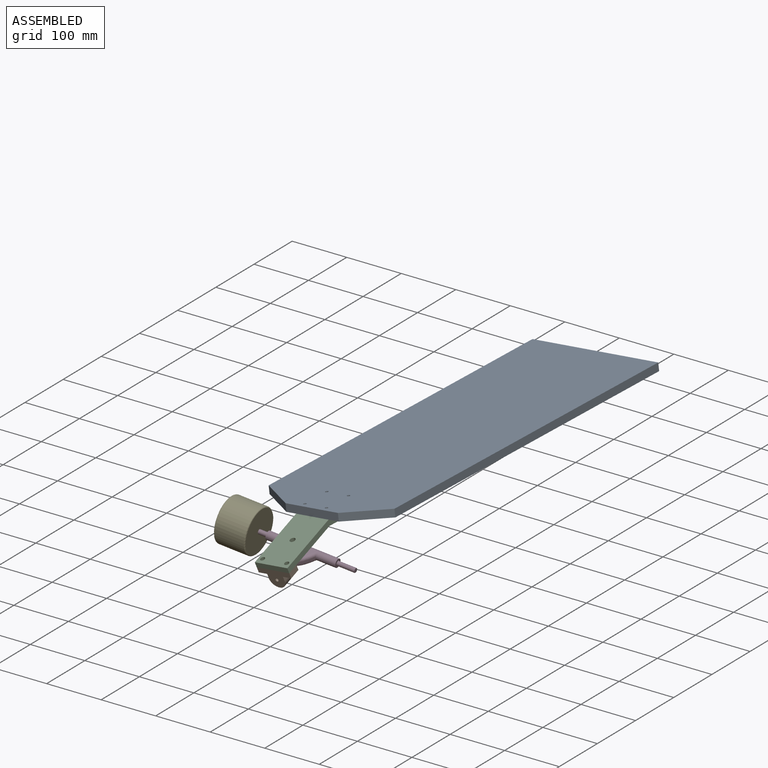
[diagram: assembled view]
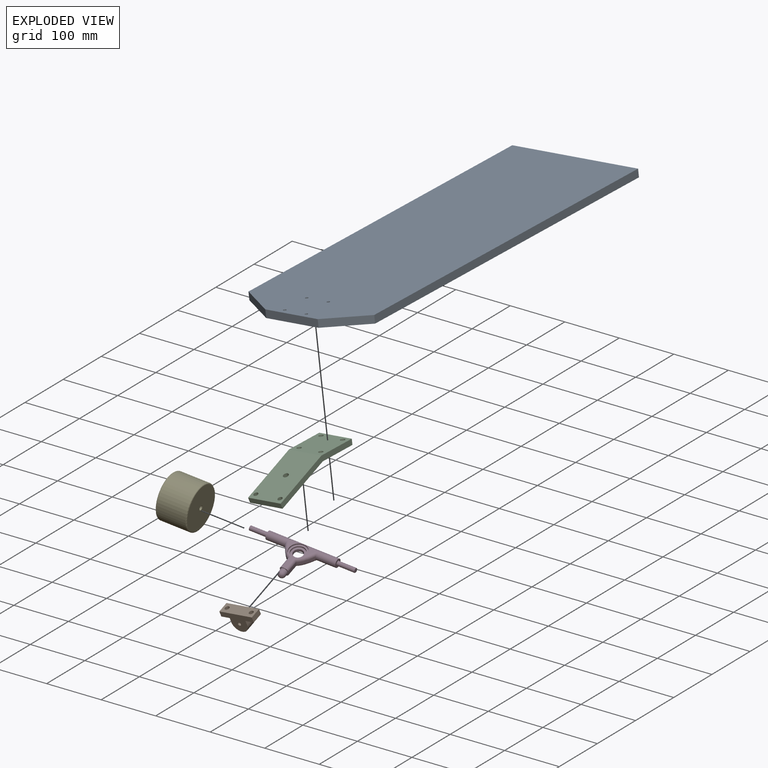
[diagram: exploded view]
GUIDED TOUR — MATED ASSEMBLY (Onshape document 6af5af3749e7a4083518a09f, AutoMate assembly 6af5af3749e7a4083518a09f_86c5d59324a404f8fcf265b6_cbd1438ab8a9dd04307d9369_default)

This assembly has 5 components, labeled P0..P4 below (a component is one placed occurrence of a part; the same part can appear more than once), held together by 4 mates. A mate is a constraint between two components; its type names the relative motion it leaves free:
  FASTENED — locks the two components together rigidly (no relative motion),
  REVOLUTE — leaves rotation about the listed axis free (a hinge).
Axis/direction vectors are unit vectors and 'through' points are millimeter coordinates, both in the assembly's world frame.

MATES
  1. FASTENED "Fastened 3": P2 <-> P0, direction (-0.120, 0.003, 0.993) through (166.66, -402.34, 67.74) mm
  2. FASTENED "Fastened 1": P1 <-> P2, direction (-0.128, -0.339, 0.932) through (169.77, -508.42, 23.14) mm
  3. FASTENED "Fastened 2": P4 <-> P3, direction (0.991, 0.046, -0.125) through (71.61, -445.45, 33.80) mm
  4. REVOLUTE "Revolute 1": P3 <-> P1, axis (0.000, 0.940, 0.342) through (149.41, -497.15, 3.86) mm

ASSEMBLY ORDER
  1. P3 — the base component [order verified]
  2. P1 [order verified]
  3. P2 [order verified]
  4. P4 [order verified]
  5. P0 [order verified]
(P1 verified with a relaxed clearance tolerance: the source model stores slight part interference there.)
Order-tag legend:
  [order verified] — this step's position reverses a verified removal order: the component was checked to insert without passing through the ones already placed.

Of the 5 components, 3 carry the full construction recipe — the FeatureScript program that regenerates the part's solid from scratch; the rest are supplied as boundary geometry only.
Each toured component is shown spotlighted twice — in the assembled view, then in the exploded view, where a leader line traces a displaced component back to its assembled socket (saturated green if recipe-attached, orange if geometry-only; every other component desaturated gray) — followed by its recipe or geometry summary and the mates that hold it.
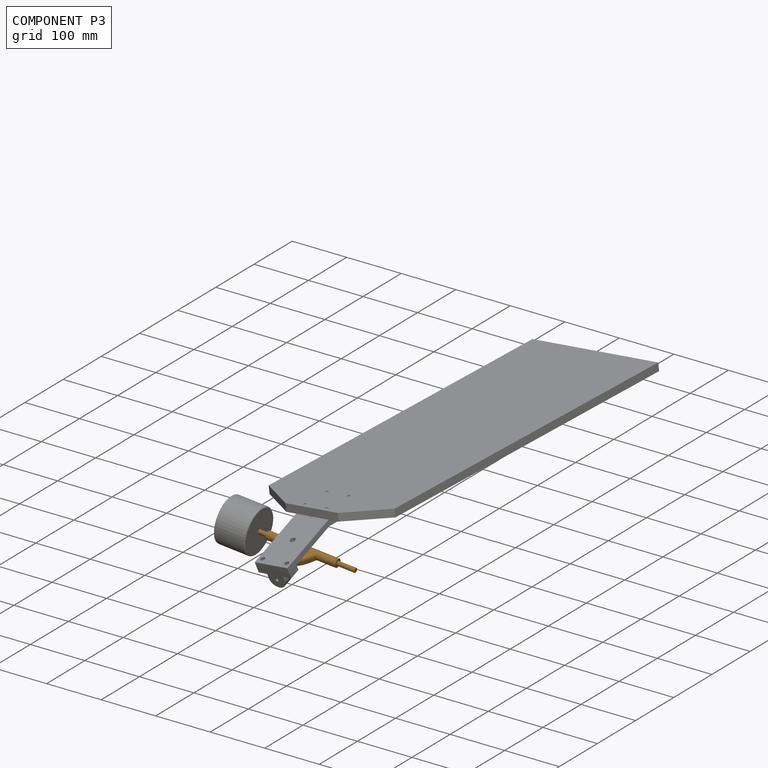
[diagram: component P3 — assembled]
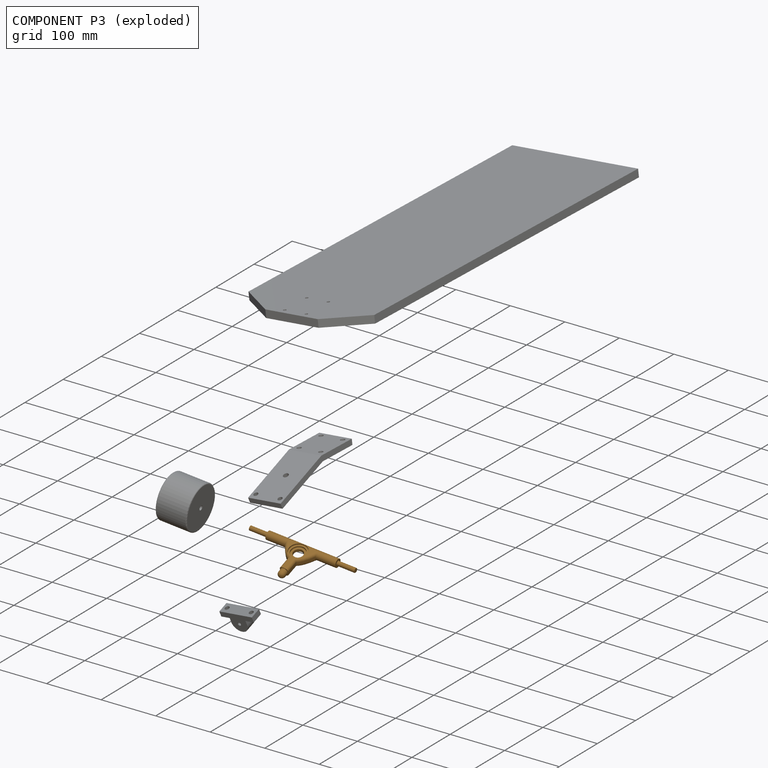
[diagram: component P3 — exploded]
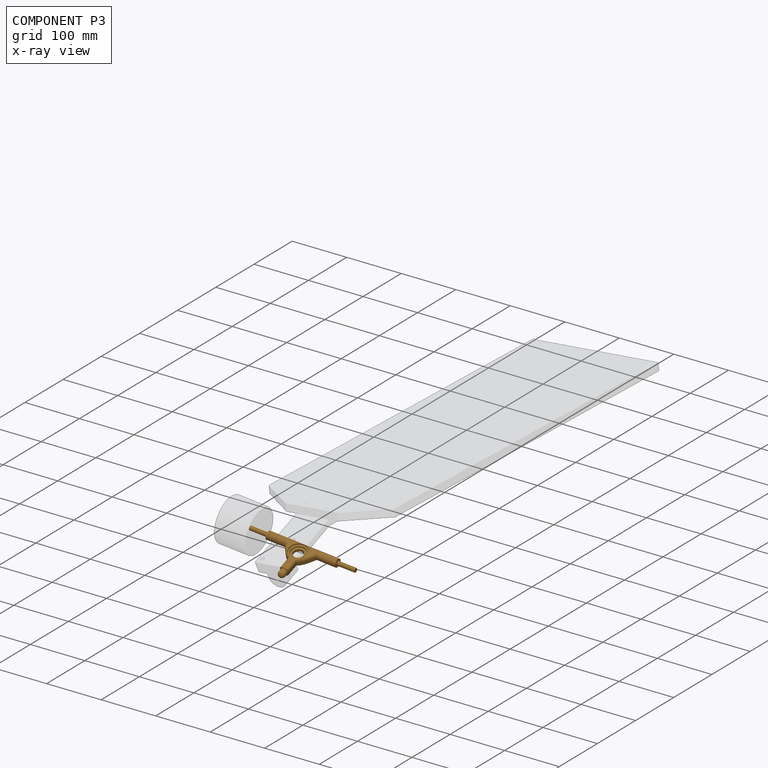
[diagram: component P3 — x-ray view]
COMPONENT P3 — geometry summary (no construction recipe available for this part):
  bounding box: 189.0 x 72.7 x 15.0 mm
  B-rep topology: 1 solid, 37 faces, 173 edges
  volume: 36947 mm^3 (18% of its bounding box)
  symmetry: 2-fold rotationally symmetric about the y axis; mirror-symmetric across its x mid-plane, z mid-plane
Held by: FASTENED mate "Fastened 2" to P4; REVOLUTE mate "Revolute 1" to P1.
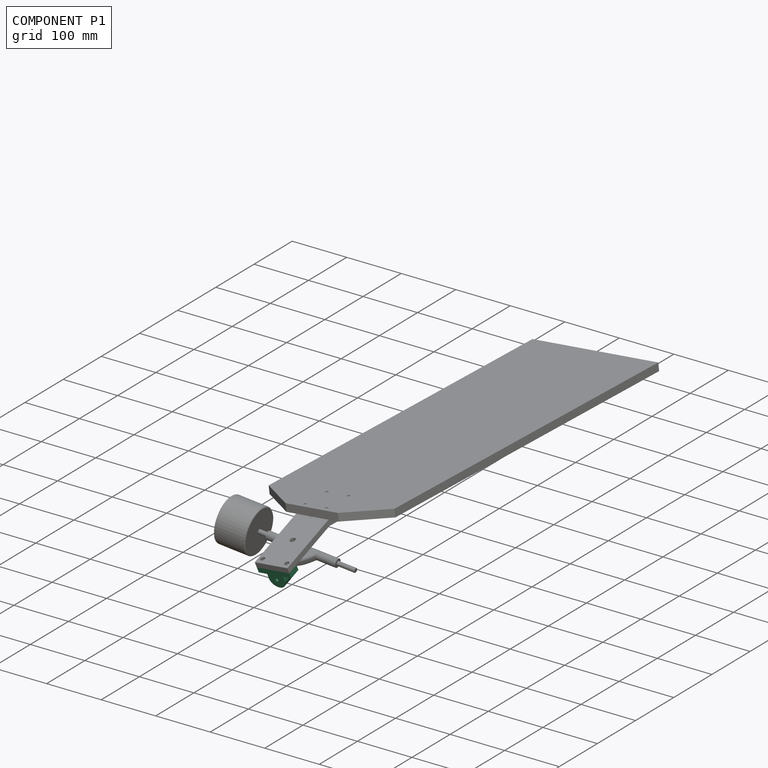
[diagram: component P1 — assembled]
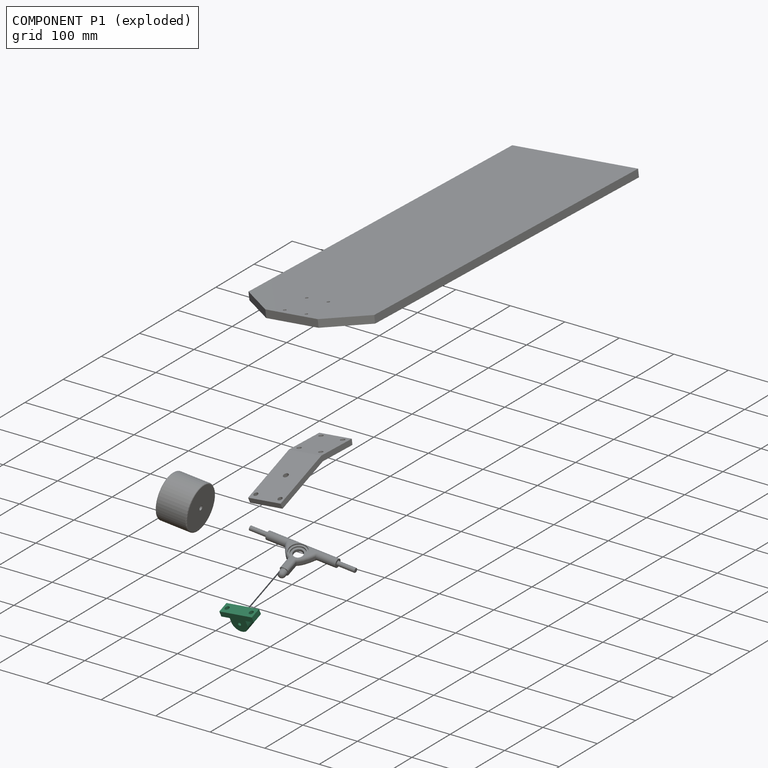
[diagram: component P1 — exploded]
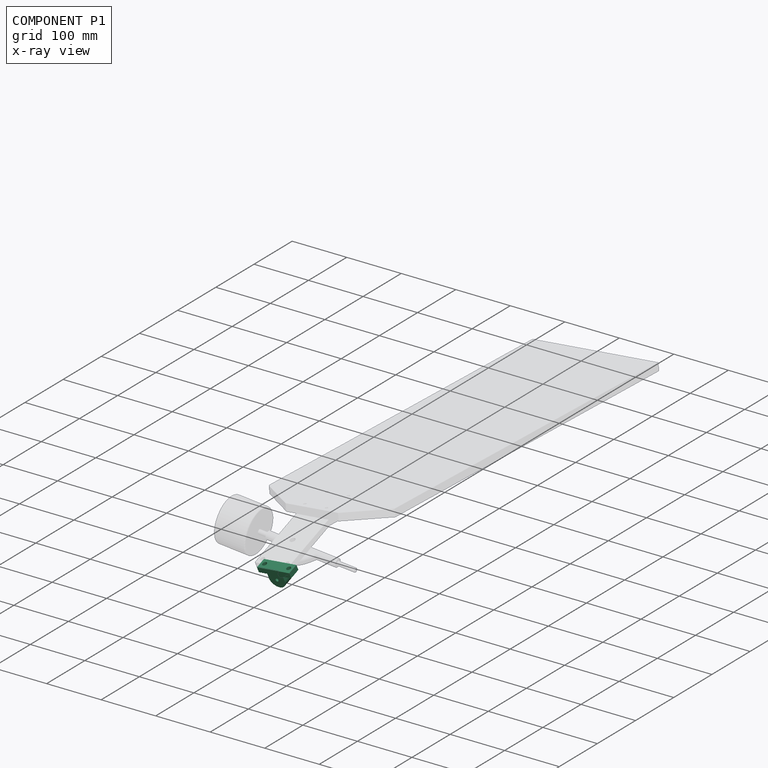
[diagram: component P1 — x-ray view]
COMPONENT P1 — recipe-attached (CADFS 00475360, mesh-verified: the recipe's output STEP matches this component's geometry to below the mesh-comparison resolution (tessellation chordal tolerance ~0.11 mm)).
Held by: FASTENED mate "Fastened 1" to P2; REVOLUTE mate "Revolute 1" to P3.
Construction recipe (FeatureScript — the CAD program that rebuilds this solid; sketch coordinates are in the units given by the * unit suffixes, e.g. mm):

FeatureScript 1511;
import(path : "onshape/std/geometry.fs", version : "1511.0");
import(path : "onshape/std/common.fs", version : "1511.0");
const mm = millimeter;
const VERTEX = EntityType.VERTEX;
const EDGE = EntityType.EDGE;
const FACE = EntityType.FACE;
const BODY = EntityType.BODY;
function v(x, y){return vector(x, y);}
function OD(order){return orderDisambiguation(order);}
function OSD(set){return originalSetDisambiguation(set);}
function TD(topology){return topologyDisambiguation(topology);}
function TDD(query){return trueDependencyDisambiguation(query);}
function sQuery(a, b, c) {return sketchEntityQuery(a, b, c);}

annotation { "Feature Type Name" : "Feature", "Feature Type Description" : "" }
export const myFeature = defineFeature(function(context is Context, id is Id, definition is map)
    precondition{}
    {
        {
            var Q0;
            Q0=qCreatedBy(makeId("Top.planeOp"),FACE);
            var sketch = newSketch(context, id + "F0", { "sketchPlane" : qUnion([Q0])});
            skLineSegment(sketch, "E0.bottom", {"start": v(28, -19.2) * mm, "end": v(-28, -19.2) * mm});
            skLineSegment(sketch, "E0.top", {"start": v(28, 0) * mm, "end": v(-28, 0) * mm});
            skLineSegment(sketch, "E0.left", {"start": v(28, -19.2) * mm, "end": v(28, 0) * mm});
            skLineSegment(sketch, "E0.right", {"start": v(-28, -19.2) * mm, "end": v(-28, 0) * mm});
            skPoint(sketch, "E0.middle", {"position": v(0, -9.6) * mm});
            skCircle(sketch, "E1", {"center": v(0, 0) * mm, "radius": 9.5 * mm});
            skArc(sketch, "E2", {"start": v(-15, 0) * mm, "mid": v(0, 15) * mm, "end": v(15, 0) * mm});
            skLineSegment(sketch, "E3", {"start": v(-28, -9.2) * mm, "end": v(-11, -9.2) * mm});
            skLineSegment(sketch, "E4", {"start": v(-11, -9.2) * mm, "end": v(-11, -19.2) * mm});
            skLineSegment(sketch, "E5", {"start": v(11, -19.2) * mm, "end": v(11, -9.2) * mm});
            skLineSegment(sketch, "E6", {"start": v(11, -9.2) * mm, "end": v(28, -9.2) * mm});
            skLineSegment(sketch, "E7", {"start": v(-28, 0) * mm, "end": v(-28, 8.5) * mm});
            skLineSegment(sketch, "E8", {"start": v(-28, 8.5) * mm, "end": v(28, 8.5) * mm});
            skLineSegment(sketch, "E9", {"start": v(28, 8.5) * mm, "end": v(28, 0) * mm});
            skPoint(sketch, "E10", {"position": v(-19, 0) * mm});
            skLineSegment(sketch, "E11", {"start": v(-28, 3.17) * mm, "end": v(-28, 0) * mm});
            skPoint(sketch, "E12", {"position": v(28, 0) * mm});
            skPoint(sketch, "E13", {"position": v(19, 0) * mm});
            skPoint(sketch, "E14", {"position": v(25.5, 0) * mm});
            skPoint(sketch, "E15", {"position": v(12.4, 0) * mm});
            skPoint(sketch, "E16", {"position": v(0, 21) * mm});
            skLineSegment(sketch, "E17", {"start": v(0, 21) * mm, "end": v(-28, 13.5) * mm});
            skPoint(sketch, "E18", {"position": v(-25.5, 0) * mm});
            skLineSegment(sketch, "E19", {"start": v(-25.5, 0) * mm, "end": v(-25.5, 14.17) * mm});
            skPoint(sketch, "E20", {"position": v(-25.5, 8.67) * mm});
            skPoint(sketch, "E21", {"position": v(-12.4, 0) * mm});
            skLineSegment(sketch, "E22", {"start": v(-25.5, 8.67) * mm, "end": v(-12.24, 8.67) * mm});
            skPoint(sketch, "E23", {"position": v(-19, 8.67) * mm});
            skLineSegment(sketch, "E24", {"start": v(31, 8.5) * mm, "end": v(31, -9.2) * mm});
            skLineSegment(sketch, "E25", {"start": v(28, 8.5) * mm, "end": v(31, 8.5) * mm});
            skLineSegment(sketch, "E26", {"start": v(-28, 8.5) * mm, "end": v(-31, 8.5) * mm});
            skLineSegment(sketch, "E27", {"start": v(-31, 8.5) * mm, "end": v(-31, -9.2) * mm});
            skLineSegment(sketch, "E28", {"start": v(-31, -9.2) * mm, "end": v(-28, -9.2) * mm});
            skLineSegment(sketch, "E29", {"start": v(31, -9.2) * mm, "end": v(28, -9.2) * mm});
            skLineSegment(sketch, "E30", {"start": v(31, -9.2) * mm, "end": v(31, -19.2) * mm});
            skLineSegment(sketch, "E31", {"start": v(31, -19.2) * mm, "end": v(28, -19.2) * mm});
            skLineSegment(sketch, "E32", {"start": v(-31, -9.2) * mm, "end": v(-31, -19.2) * mm});
            skLineSegment(sketch, "E33", {"start": v(-31, -19.2) * mm, "end": v(-28, -19.2) * mm});
            skLineSegment(sketch, "E34", {"start": v(15, 0) * mm, "end": v(15, -9.2) * mm});
            skLineSegment(sketch, "E35", {"start": v(-15, 0) * mm, "end": v(-15, -9.2) * mm});
            skSolve(sketch);
        }
        {
            var Q0;
            {var subQ1=sQuery(id+"F0.wireOp",EDGE,"E0.top");var subQ3=sQuery(id+"F0.wireOp",EDGE,"E1");var subQ4=makeQuery(id+"F0.imprint","INTERSECT",VERTEX,{"disambiguationData":[OD(1.0)],"derivedFrom":[subQ1,subQ3]});Q0=makeQuery(id+"F0.imprint","IMPRINT",FACE,{"disambiguationData":[TD([[makeQuery(id+"F0.imprint","IMPRINT",EDGE,{"disambiguationData":[TD([[subQ4,1.0]])],"derivedFrom":subQ3}),-1.0]])]});}
            var Q1;
            {var subQ0=sQuery(id+"F0.wireOp",EDGE,"E8");var subQ1=sQuery(id+"F0.wireOp",EDGE,"E1");var subQ7=makeQuery(id+"F0.imprint","INTERSECT",VERTEX,{"disambiguationData":[OD(0.0)],"derivedFrom":[subQ1,subQ0]});Q1=makeQuery(id+"F0.imprint","IMPRINT",FACE,{"disambiguationData":[TD([[makeQuery(id+"F0.imprint","IMPRINT",EDGE,{"disambiguationData":[TD([[subQ7,-1.0]])],"derivedFrom":subQ1}),-1.0]])]});}
            var Q2;
            {var subQ0=sQuery(id+"F0.wireOp",EDGE,"E1");var subQ1=sQuery(id+"F0.wireOp",EDGE,"E0.top");var subQ2=makeQuery(id+"F0.imprint","INTERSECT",VERTEX,{"disambiguationData":[OD(0.0)],"derivedFrom":[subQ1,subQ0]});Q2=makeQuery(id+"F0.imprint","IMPRINT",FACE,{"disambiguationData":[TD([[makeQuery(id+"F0.imprint","IMPRINT",EDGE,{"disambiguationData":[TD([[subQ2,-1.0]])],"derivedFrom":subQ1}),-1.0]])]});}
            var Q3;
            {var subQ0=sQuery(id+"F0.wireOp",EDGE,"E8");var subQ1=sQuery(id+"F0.wireOp",EDGE,"E1");var subQ2=makeQuery(id+"F0.imprint","INTERSECT",VERTEX,{"disambiguationData":[OD(0.0)],"derivedFrom":[subQ1,subQ0]});Q3=makeQuery(id+"F0.imprint","IMPRINT",FACE,{"disambiguationData":[TD([[makeQuery(id+"F0.imprint","IMPRINT",EDGE,{"disambiguationData":[TD([[subQ2,-1.0]])],"derivedFrom":subQ1}),1.0]])]});}
            var Q4;
            {var subQ1=sQuery(id+"F0.wireOp",EDGE,"E0.top");var subQ3=sQuery(id+"F0.wireOp",EDGE,"E1");var subQ4=makeQuery(id+"F0.imprint","INTERSECT",VERTEX,{"disambiguationData":[OD(0.0)],"derivedFrom":[subQ1,subQ3]});Q4=makeQuery(id+"F0.imprint","IMPRINT",FACE,{"disambiguationData":[TD([[makeQuery(id+"F0.imprint","IMPRINT",EDGE,{"disambiguationData":[TD([[subQ4,-1.0]])],"derivedFrom":subQ3}),-1.0]])]});}
            var Q5;
            {var subQ0=sQuery(id+"F0.wireOp",EDGE,"E1");var subQ1=sQuery(id+"F0.wireOp",EDGE,"E0.top");var subQ2=makeQuery(id+"F0.imprint","INTERSECT",VERTEX,{"disambiguationData":[OD(0.0)],"derivedFrom":[subQ1,subQ0]});Q5=makeQuery(id+"F0.imprint","IMPRINT",FACE,{"disambiguationData":[TD([[makeQuery(id+"F0.imprint","IMPRINT",EDGE,{"disambiguationData":[TD([[subQ2,-1.0]])],"derivedFrom":subQ1}),1.0]])]});}
            var Q6;
            {var subQ7=sQuery(id+"F0.wireOp",EDGE,"E4");Q6=makeQuery(id+"F0.imprint","IMPRINT",FACE,{"disambiguationData":[TD([[makeQuery(id+"F0.imprint","IMPRINT",EDGE,{"derivedFrom":subQ7}),1.0]])]});}
            var Q7;
            {var subQ6=sQuery(id+"F0.wireOp",EDGE,"E4");Q7=makeQuery(id+"F0.imprint","IMPRINT",FACE,{"disambiguationData":[TD([[makeQuery(id+"F0.imprint","IMPRINT",EDGE,{"derivedFrom":subQ6}),-1.0]])]});}
            var Q8;
            {var subQ2=sQuery(id+"F0.wireOp",EDGE,"E28");Q8=makeQuery(id+"F0.imprint","IMPRINT",FACE,{"disambiguationData":[TD([[makeQuery(id+"F0.imprint","IMPRINT",EDGE,{"derivedFrom":subQ2}),-1.0]])]});}
            var Q9;
            {var subQ0=sQuery(id+"F0.wireOp",EDGE,"E5");Q9=makeQuery(id+"F0.imprint","IMPRINT",FACE,{"disambiguationData":[TD([[makeQuery(id+"F0.imprint","IMPRINT",EDGE,{"derivedFrom":subQ0}),-1.0]])]});}
            var Q10;
            {var subQ2=sQuery(id+"F0.wireOp",EDGE,"E29");Q10=makeQuery(id+"F0.imprint","IMPRINT",FACE,{"disambiguationData":[TD([[makeQuery(id+"F0.imprint","IMPRINT",EDGE,{"derivedFrom":subQ2}),1.0]])]});}
            extrude(context, id + "F1", {"entities" : qUnion([Q0, Q1, Q2, Q3, Q4, Q5, Q6, Q7, Q8, Q9, Q10]), "oppositeDirection" : true, "depth" : 20 * mm});
        }
        {
            var Q0;
            Q0=sQuery(id+"F0.wireOp",VERTEX,"E2.center");
            var Q1;
            Q1=makeQuery(id+"F1.opExtrude","SWEPT_BODY",BODY,{"disambiguationData":[OSD([sQuery(id+"F0.wireOp",EDGE,"E0.bottom"),sQuery(id+"F0.wireOp",EDGE,"E0.left"),sQuery(id+"F0.wireOp",EDGE,"E0.right"),sQuery(id+"F0.wireOp",EDGE,"E2"),sQuery(id+"F0.wireOp",EDGE,"E3"),sQuery(id+"F0.wireOp",EDGE,"E4"),sQuery(id+"F0.wireOp",EDGE,"E5"),sQuery(id+"F0.wireOp",EDGE,"E6"),sQuery(id+"F0.wireOp",EDGE,"E7"),sQuery(id+"F0.wireOp",EDGE,"E8"),sQuery(id+"F0.wireOp",EDGE,"E9"),sQuery(id+"F0.wireOp",EDGE,"E11")])]});
            hole(context, id + "F2", {"style" : HoleStyle.SIMPLE, "endStyle" : HoleEndStyle.THROUGH, "standardTappedOrClearance" : lookupTablePath({ "standard" : "ISO", "size" : "6", "type" : "Drilled" }), "standardBlindInLast" : lookupTablePath({ "standard" : "ISO", "size" : "6", "type" : "Drilled" }), "holeDiameter" : 6 * mm, "isTappedThrough" : true, "tappedDepth" : 12 * mm, "tapClearance" : 3, "locations" : qUnion([Q0]), "scope" : qUnion([Q1])});
        }
        {
            var Q0;
            Q0=makeQuery(id+"F1.opExtrude","SWEPT_FACE",FACE,{"disambiguationData":[OSD([sQuery(id+"F0.wireOp",EDGE,"E6"),sQuery(id+"F0.wireOp",EDGE,"E29")])]});
            var sketch = newSketch(context, id + "F3", { "sketchPlane" : qUnion([Q0])});
            skPoint(sketch, "E36", {"position": v(-23, -10) * mm});
            skPoint(sketch, "E36.positionSnap0", {"position": v(-23, 0) * mm});
            skPoint(sketch, "E36.positionSnap1", {"position": v(-31, -10) * mm});
            skSolve(sketch);
        }
        {
            var Q0;
            Q0=makeQuery(id+"F1.opExtrude","SWEPT_FACE",FACE,{"disambiguationData":[OSD([sQuery(id+"F0.wireOp",EDGE,"E3"),sQuery(id+"F0.wireOp",EDGE,"E28")])]});
            var sketch = newSketch(context, id + "F4", { "sketchPlane" : qUnion([Q0])});
            skPoint(sketch, "E37", {"position": v(23, -10) * mm});
            skPoint(sketch, "E37.positionSnap0", {"position": v(31, -10) * mm});
            skPoint(sketch, "E37.positionSnap1", {"position": v(23, 0) * mm});
            skSolve(sketch);
        }
        {
            var Q0;
            Q0=sQuery(id+"F3.wireOp",VERTEX,"E36");
            var Q1;
            Q1=sQuery(id+"F4.wireOp",VERTEX,"E37");
            var Q2;
            Q2=makeQuery(id+"F1.opExtrude","SWEPT_BODY",BODY,{"disambiguationData":[OSD([sQuery(id+"F0.wireOp",EDGE,"E0.bottom"),sQuery(id+"F0.wireOp",EDGE,"E2"),sQuery(id+"F0.wireOp",EDGE,"E3"),sQuery(id+"F0.wireOp",EDGE,"E6"),sQuery(id+"F0.wireOp",EDGE,"E28"),sQuery(id+"F0.wireOp",EDGE,"E29"),sQuery(id+"F0.wireOp",EDGE,"E30"),sQuery(id+"F0.wireOp",EDGE,"E31"),sQuery(id+"F0.wireOp",EDGE,"E32"),sQuery(id+"F0.wireOp",EDGE,"E33"),sQuery(id+"F0.wireOp",EDGE,"E34"),sQuery(id+"F0.wireOp",EDGE,"E35")])]});
            hole(context, id + "F5", {"style" : HoleStyle.SIMPLE, "endStyle" : HoleEndStyle.THROUGH, "standardTappedOrClearance" : lookupTablePath({ "standard" : "ISO", "size" : "8", "type" : "Drilled" }), "standardBlindInLast" : lookupTablePath({ "standard" : "ISO", "size" : "8", "type" : "Drilled" }), "holeDiameter" : 8 * mm, "isTappedThrough" : true, "tappedDepth" : 12 * mm, "tapClearance" : 3, "locations" : qUnion([Q0, Q1]), "scope" : qUnion([Q2])});
        }
    });
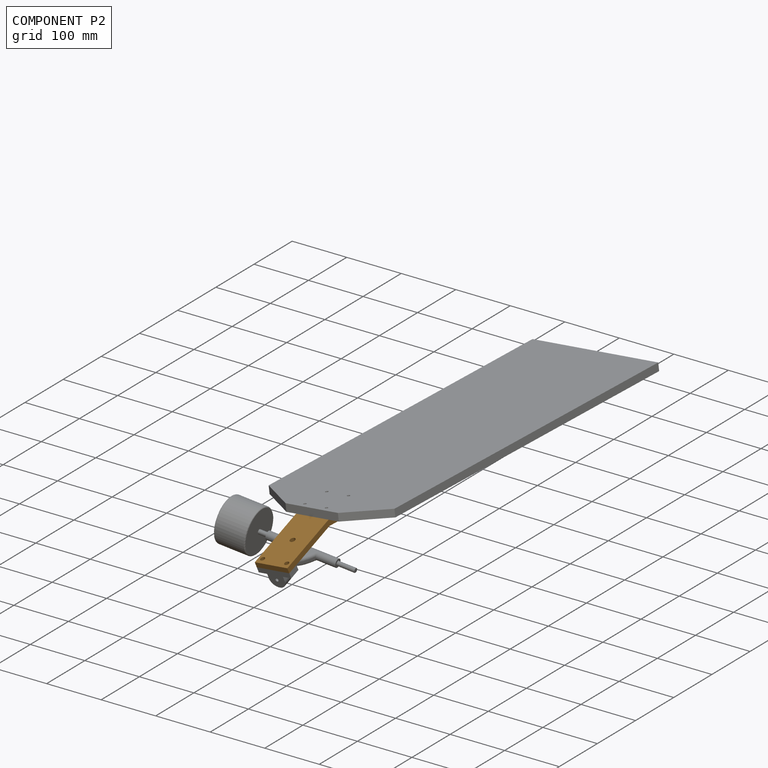
[diagram: component P2 — assembled]
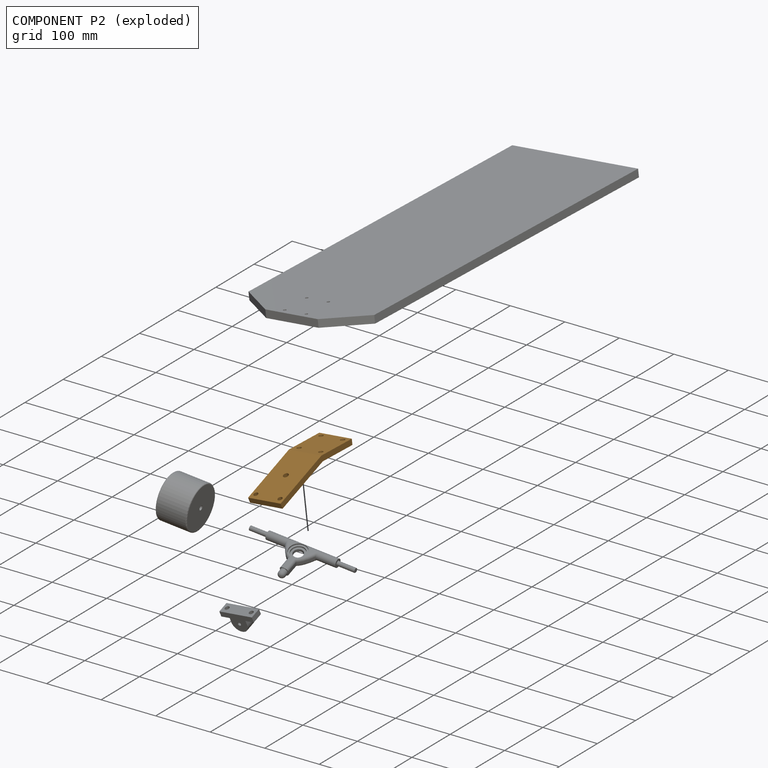
[diagram: component P2 — exploded]
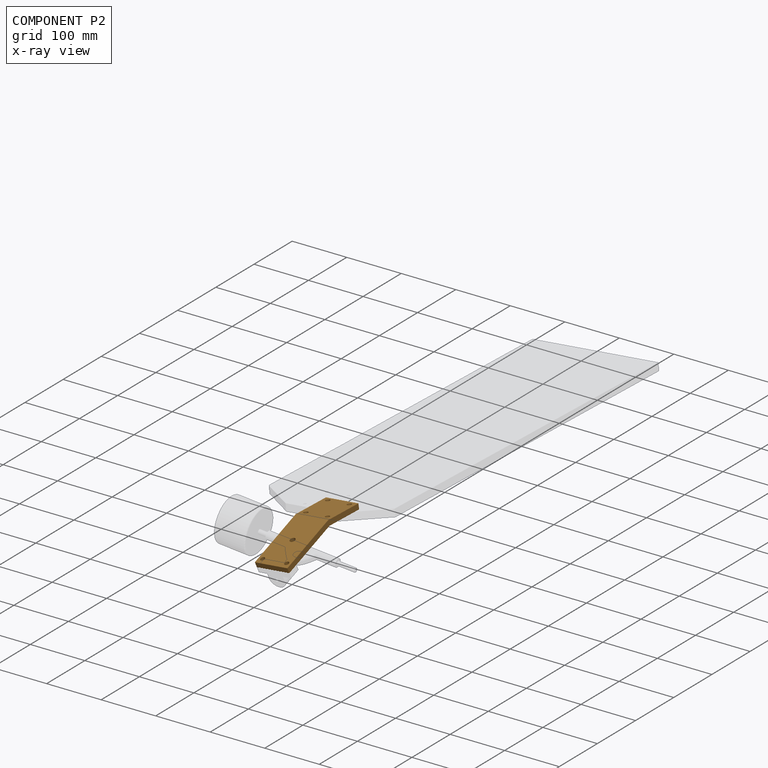
[diagram: component P2 — x-ray view]
COMPONENT P2 — geometry summary (no construction recipe available for this part):
  bounding box: 181.9 x 62.0 x 48.3 mm
  B-rep topology: 1 solid, 15 faces, 92 edges
  volume: 112212 mm^3 (21% of its bounding box)
  symmetry: mirror-symmetric across its z mid-plane
Held by: FASTENED mate "Fastened 3" to P0; FASTENED mate "Fastened 1" to P1.
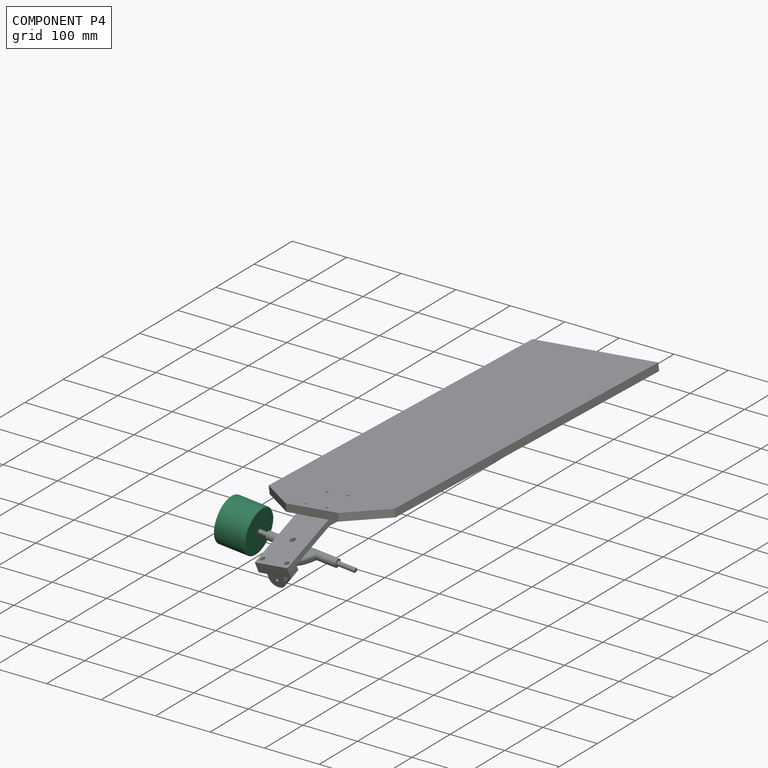
[diagram: component P4 — assembled]
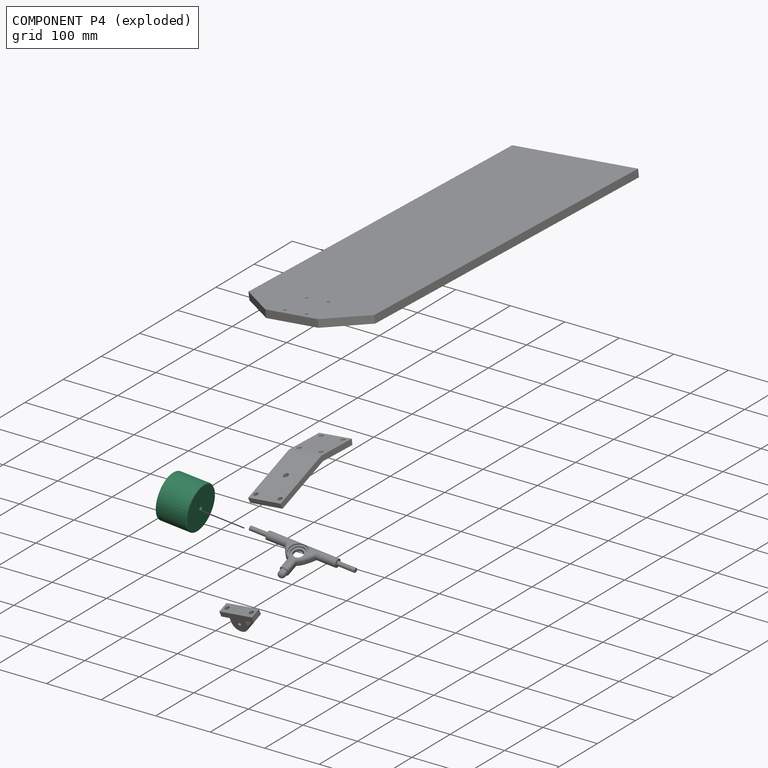
[diagram: component P4 — exploded]
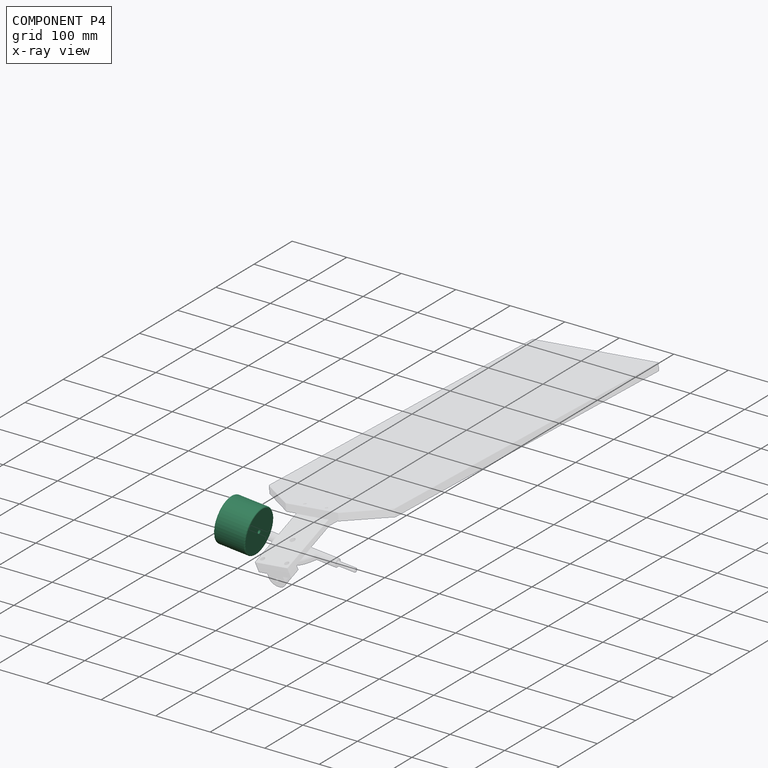
[diagram: component P4 — x-ray view]
COMPONENT P4 — recipe-attached (CADFS 00475361, mesh-verified: the recipe's output STEP matches this component's geometry to below the mesh-comparison resolution (tessellation chordal tolerance ~0.189 mm)).
Held by: FASTENED mate "Fastened 2" to P3.
Construction recipe (FeatureScript — the CAD program that rebuilds this solid; sketch coordinates are in the units given by the * unit suffixes, e.g. mm):

FeatureScript 1511;
import(path : "onshape/std/geometry.fs", version : "1511.0");
import(path : "onshape/std/common.fs", version : "1511.0");
const mm = millimeter;
const VERTEX = EntityType.VERTEX;
const EDGE = EntityType.EDGE;
const FACE = EntityType.FACE;
const BODY = EntityType.BODY;
function v(x, y){return vector(x, y);}
function OD(order){return orderDisambiguation(order);}
function OSD(set){return originalSetDisambiguation(set);}
function TD(topology){return topologyDisambiguation(topology);}
function TDD(query){return trueDependencyDisambiguation(query);}
function sQuery(a, b, c) {return sketchEntityQuery(a, b, c);}

annotation { "Feature Type Name" : "Feature", "Feature Type Description" : "" }
export const myFeature = defineFeature(function(context is Context, id is Id, definition is map)
    precondition{}
    {
        {
            var Q0;
            Q0=qCreatedBy(makeId("Top.planeOp"),FACE);
            var sketch = newSketch(context, id + "F0", { "sketchPlane" : qUnion([Q0])});
            skCircle(sketch, "E0", {"center": v(0, 0) * mm, "radius": 40 * mm});
            skSolve(sketch);
        }
        {
            var Q0;
            Q0=makeQuery(id+"F0.imprint","IMPRINT",FACE,{"disambiguationData":[TD([[makeQuery(id+"F0.imprint","IMPRINT",EDGE,{"derivedFrom":sQuery(id+"F0.wireOp",EDGE,"E0")}),1.0]])]});
            extrude(context, id + "F1", {"entities" : qUnion([Q0]), "depth" : 56 * mm});
        }
        {
            var Q0;
            Q0=sQuery(id+"F0.wireOp",VERTEX,"E0.center");
            var Q1;
            Q1=makeQuery(id+"F1.opExtrude","SWEPT_BODY",BODY,{"disambiguationData":[OSD([sQuery(id+"F0.wireOp",EDGE,"E0")])]});
            hole(context, id + "F2", {"style" : HoleStyle.SIMPLE, "endStyle" : HoleEndStyle.THROUGH, "oppositeDirection" : true, "standardTappedOrClearance" : lookupTablePath({ "standard" : "ISO", "size" : "8", "type" : "Drilled" }), "standardBlindInLast" : lookupTablePath({ "standard" : "ISO", "size" : "8", "type" : "Drilled" }), "holeDiameter" : 8 * mm, "isTappedThrough" : true, "tappedDepth" : 12 * mm, "tapClearance" : 3, "locations" : qUnion([Q0]), "scope" : qUnion([Q1])});
        }
        {
            var Q0;
            Q0=makeQuery(id+"F1.opExtrude","SWEPT_FACE",FACE,{"disambiguationData":[OSD([sQuery(id+"F0.wireOp",EDGE,"E0")])]});
            var Q1;
            Q1=makeQuery(id+"F1.opExtrude","CAP_EDGE",EDGE,{"disambiguationData":[OSD([sQuery(id+"F0.wireOp",EDGE,"E0")])],"isStart":false});
            fillet(context, id + "F3", {"entities" : qUnion([Q0, Q1]), "radius" : 2 * mm, "tangentPropagation" : true, "allowEdgeOverflow" : false});
        }
    });
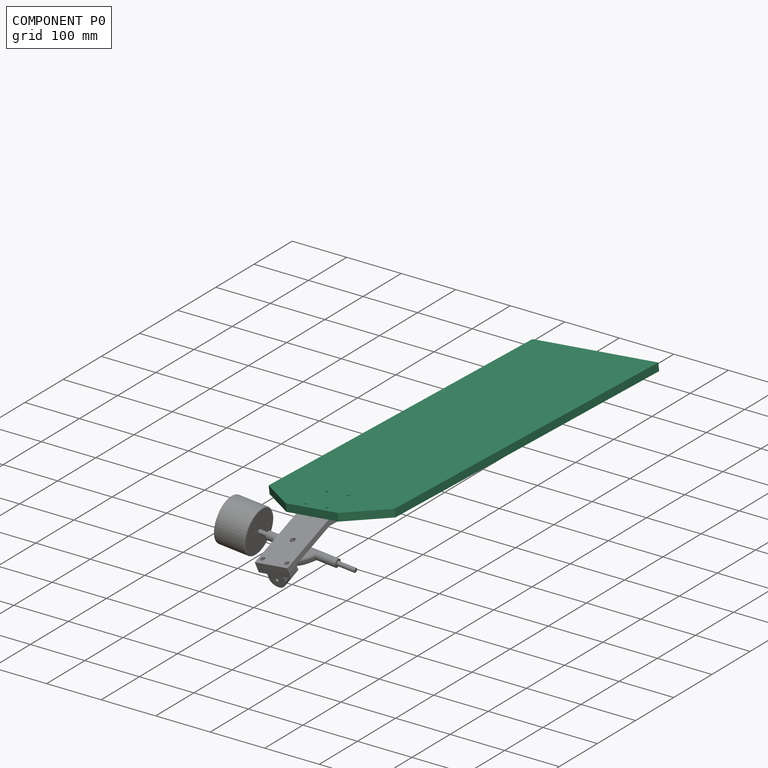
[diagram: component P0 — assembled]
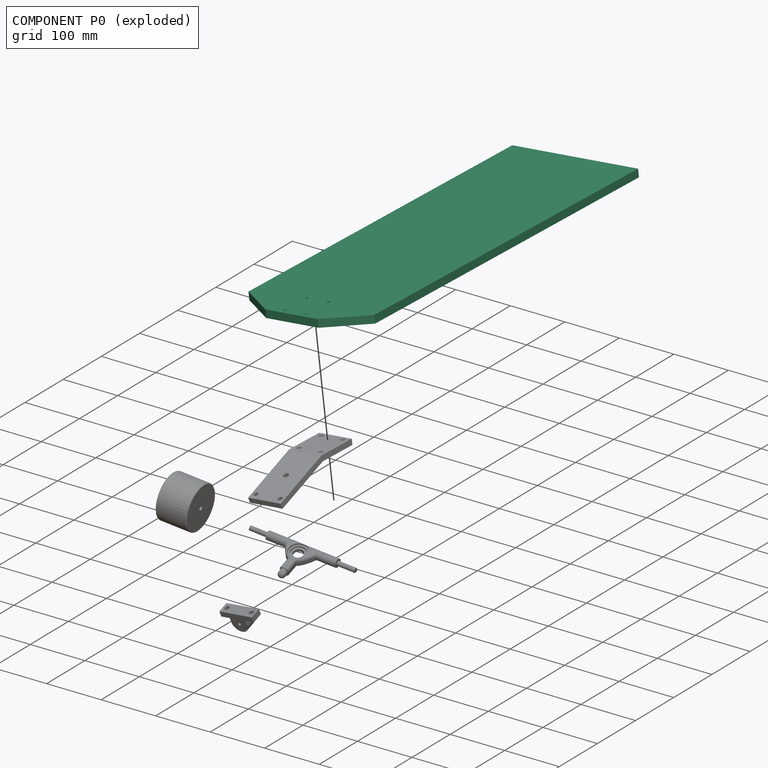
[diagram: component P0 — exploded]
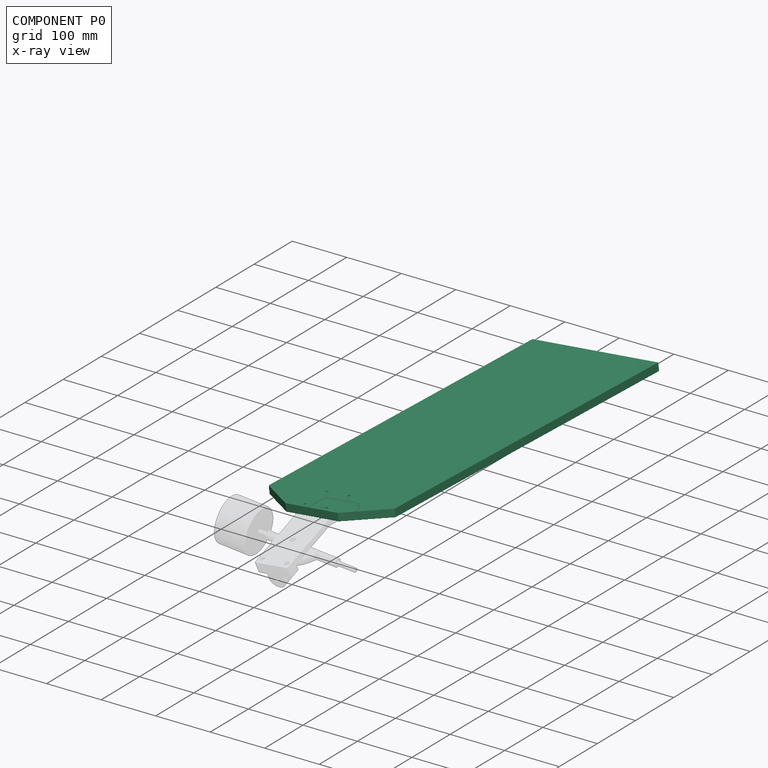
[diagram: component P0 — x-ray view]
COMPONENT P0 — recipe-attached (CADFS 00475363, mesh-verified: the recipe's output STEP matches this component's geometry to below the mesh-comparison resolution (tessellation chordal tolerance ~1.11 mm)).
Held by: FASTENED mate "Fastened 3" to P2.
Construction recipe (FeatureScript — the CAD program that rebuilds this solid; sketch coordinates are in the units given by the * unit suffixes, e.g. mm):

FeatureScript 1511;
import(path : "onshape/std/geometry.fs", version : "1511.0");
import(path : "onshape/std/common.fs", version : "1511.0");
const mm = millimeter;
const VERTEX = EntityType.VERTEX;
const EDGE = EntityType.EDGE;
const FACE = EntityType.FACE;
const BODY = EntityType.BODY;
function v(x, y){return vector(x, y);}
function OD(order){return orderDisambiguation(order);}
function OSD(set){return originalSetDisambiguation(set);}
function TD(topology){return topologyDisambiguation(topology);}
function TDD(query){return trueDependencyDisambiguation(query);}
function sQuery(a, b, c) {return sketchEntityQuery(a, b, c);}

annotation { "Feature Type Name" : "Feature", "Feature Type Description" : "" }
export const myFeature = defineFeature(function(context is Context, id is Id, definition is map)
    precondition{}
    {
        {
            var Q0;
            Q0=qCreatedBy(makeId("Top.planeOp"),FACE);
            var sketch = newSketch(context, id + "F0", { "sketchPlane" : qUnion([Q0])});
            skLineSegment(sketch, "E0.bottom", {"start": v(350, -120) * mm, "end": v(-350, -120) * mm});
            skLineSegment(sketch, "E0.top", {"start": v(350, 120) * mm, "end": v(-350, 120) * mm});
            skLineSegment(sketch, "E0.left", {"start": v(350, -120) * mm, "end": v(350, 120) * mm});
            skLineSegment(sketch, "E0.right", {"start": v(-350, -120) * mm, "end": v(-350, 120) * mm});
            skPoint(sketch, "E0.middle", {"position": v(0, 0) * mm});
            skPoint(sketch, "E1", {"position": v(-350, 0) * mm});
            skPoint(sketch, "E2", {"position": v(-350, 50) * mm});
            skLineSegment(sketch, "E3", {"start": v(-350, 50) * mm, "end": v(-300.99, 120) * mm});
            skPoint(sketch, "E4", {"position": v(-340, 0) * mm});
            skPoint(sketch, "E5", {"position": v(-340, 20.64) * mm});
            skPoint(sketch, "E6", {"position": v(-340, -20.64) * mm});
            skPoint(sketch, "E7", {"position": v(-286, 20.64) * mm});
            skPoint(sketch, "E8", {"position": v(-286, -20.64) * mm});
            skPoint(sketch, "E9", {"position": v(-350, -50) * mm});
            skLineSegment(sketch, "E10", {"start": v(-350, -50) * mm, "end": v(-300.99, -120) * mm});
            skSolve(sketch);
        }
        {
            var Q0;
            {var subQ3=sQuery(id+"F0.wireOp",EDGE,"E0.left");Q0=makeQuery(id+"F0.imprint","IMPRINT",FACE,{"disambiguationData":[TD([[makeQuery(id+"F0.imprint","IMPRINT",EDGE,{"derivedFrom":subQ3}),1.0]])]});}
            extrude(context, id + "F1", {"entities" : qUnion([Q0]), "depth" : 14 * mm});
        }
        {
            var Q0;
            Q0=sQuery(id+"F0.wireOp",VERTEX,"E5");
            var Q1;
            Q1=sQuery(id+"F0.wireOp",VERTEX,"E7");
            var Q2;
            Q2=sQuery(id+"F0.wireOp",VERTEX,"E8");
            var Q3;
            Q3=sQuery(id+"F0.wireOp",VERTEX,"E6");
            var Q4;
            Q4=makeQuery(id+"F1.opExtrude","SWEPT_BODY",BODY,{"disambiguationData":[OSD([sQuery(id+"F0.wireOp",EDGE,"E0.bottom"),sQuery(id+"F0.wireOp",EDGE,"E0.top"),sQuery(id+"F0.wireOp",EDGE,"E0.left"),sQuery(id+"F0.wireOp",EDGE,"E0.right"),sQuery(id+"F0.wireOp",EDGE,"E3"),sQuery(id+"F0.wireOp",EDGE,"E10")])]});
            hole(context, id + "F2", {"style" : HoleStyle.SIMPLE, "endStyle" : HoleEndStyle.THROUGH, "oppositeDirection" : true, "standardTappedOrClearance" : lookupTablePath({ "standard" : "ISO", "fit" : "Close", "size" : "M5", "type" : "Clearance" }), "standardBlindInLast" : lookupTablePath({ "fit" : "Close", "standard" : "ISO", "size" : "M5", "type" : "Clearance" }), "holeDiameter" : 5.25 * mm, "isTappedThrough" : true, "tappedDepth" : 12 * mm, "tapClearance" : 3, "locations" : qUnion([Q0, Q1, Q2, Q3]), "scope" : qUnion([Q4])});
        }
    });
PROVENANCE & LICENSES
Assembly (occurrences, transforms, mates, per-part STEP geometry): AutoMate dataset, Zenodo record 7776208, CC0.
Construction recipes: CADFS (HuggingFace VladPyatov/CADFS, CC-BY-4.0, layered over the ABC dataset), FeatureScript reconstruction programs keyed by ABC model id.
Join: ABC meta listings map ABC model id -> Onshape documentId; within a shared document, parts are matched by geometric signature (bounding-box dims + volume at 0.1% relative tolerance, exact B-rep face/solid counts).
Verification: 3 of this assembly's 5 components carry a recipe attachment, and every attachment is mesh-verified: the CADFS STEP and the AutoMate member STEP were compared as meshes in their shared local frame (symmetric sampled-point-to-mesh distance); worst across the 3 attachments: below the mesh-comparison resolution (tessellation chordal tolerance ~1.11 mm) on a 740 mm part.
Renders: orthographic iso camera (az 35 / el 25); the floor grid conveys scale (grid pitch printed in each image; no ruler). In the exploded view each component is displaced by its stored offset vector: the offsets alone carry the explosion direction (mate normal/axis signs are not orientation cues and do not encode it), and separation distances are assigned per mate-chain, not proportionally to assembly-order depth.
